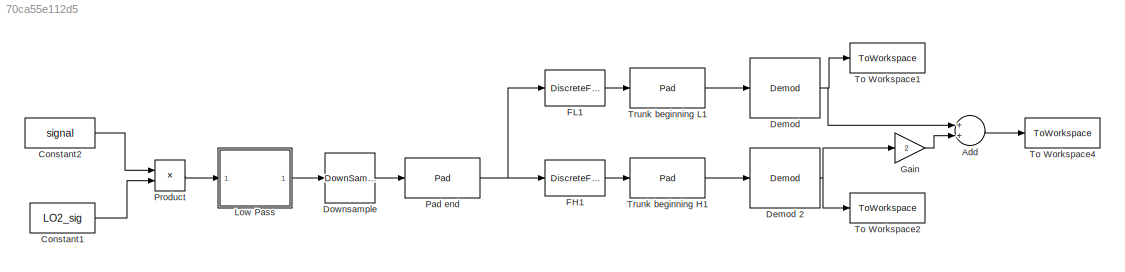
MODEL slx_70ca55e112d5
KIND model
CONFIG AbsTol = auto
CONFIG FixedStep = auto
CONFIG MaxStep = auto
CONFIG MinStep = auto
CONFIG RelTol = 1e-3
CONFIG SampleTimeConstraint = Unconstrained
CONFIG Solver = VariableStepAuto
CONFIG SolverMode = Auto
CONFIG SolverName = VariableStepAuto
CONFIG StartTime = 0.0
CONFIG StopTime = 809*1/66000
BLOCK [Sum] Add
  InputSameDT = off
  OutDataTypeStr = double
  Ports = [2, 1]
  SaturateOnIntegerOverflow = off
BLOCK [Constant] Constant1
  SampleTime = fs
  Value = LO2_sig
BLOCK [Constant] Constant2
  SampleTime = fs
  Value = signal
BLOCK [Reference] Demod   REF=lib1/Demod  (lib defined in slx_a02f9044f325)

  Ports = [1, 1]
  SourceBlock = lib1/Demod
  SourceType = SubSystem
BLOCK [Reference] Demod 2  REF=lib1/Demod  (lib defined in slx_a02f9044f325)

  Ports = [1, 1]
  SourceBlock = lib1/Demod
  SourceType = SubSystem
BLOCK [DownSample] Downsample
  N = 64
BLOCK [DiscreteFilter] FH1
  Denominator = bandpass_a_H
  InputPortMap = u0
  InputProcessing = Columns as channels (frame based)
  Numerator = bandpass_b_H
  Ports = [1, 1]
BLOCK [DiscreteFilter] FL1
  Denominator = bandpass_a_L
  InputPortMap = u0
  InputProcessing = Columns as channels (frame based)
  Numerator = bandpass_b_L
  Ports = [1, 1]
BLOCK [Gain] Gain
  Gain = 2
  OutDataTypeStr = Inherit: Inherit via internal rule
  ParamDataTypeStr = Inherit: Inherit via internal rule
  SaturateOnIntegerOverflow = off
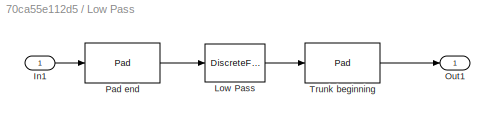
BLOCK [SubSystem] Low Pass
  Ports = [1, 1]
  RequestExecContextInheritance = off
  Variant = off
BLOCK [Inport] Low Pass/In1
  IconDisplay = Port number
BLOCK [DiscreteFir] Low Pass/Low Pass 
  Coefficients = b_low_pass
  InputPortMap = u0
  InputProcessing = Columns as channels (frame based)
  OutputPortMap = o0
  Ports = [1, 1]
BLOCK [Outport] Low Pass/Out1
  IconDisplay = Port number
BLOCK [Reference] Low Pass/Pad end  REF=dspsigops/Pad
  Ports = [1, 1]
  SourceBlock = dspsigops/Pad
  SourceType = Pad
BLOCK [Reference] Low Pass/Trunk beginning  REF=dspsigops/Pad
  Ports = [1, 1]
  SourceBlock = dspsigops/Pad
  SourceType = Pad
BLOCK [Reference] Pad end  REF=dspsigops/Pad
  Ports = [1, 1]
  SourceBlock = dspsigops/Pad
  SourceType = Pad
BLOCK [Product] Product
  InputSameDT = off
  OutDataTypeStr = Inherit: Inherit via internal rule
  Ports = [2, 1]
  RndMeth = Floor
  SaturateOnIntegerOverflow = off
BLOCK [ToWorkspace] To Workspace1
  Commented = on
  FixptAsFi = on
  MaxDataPoints = inf
  Ports = [1]
  SampleTime = -1
  Save2DSignal = 3-D array (concatenate along third dimension)
  SaveFormat = Timeseries
  VariableName = low
BLOCK [ToWorkspace] To Workspace2
  Commented = on
  FixptAsFi = on
  MaxDataPoints = inf
  Ports = [1]
  SampleTime = -1
  Save2DSignal = 3-D array (concatenate along third dimension)
  SaveFormat = Timeseries
  VariableName = high
BLOCK [ToWorkspace] To Workspace4
  FixptAsFi = on
  MaxDataPoints = inf
  Ports = [1]
  SampleTime = -1
  Save2DSignal = 3-D array (concatenate along third dimension)
  VariableName = received_data
BLOCK [Reference] Trunk beginning H1  REF=dspsigops/Pad
  Ports = [1, 1]
  SourceBlock = dspsigops/Pad
  SourceType = Pad
BLOCK [Reference] Trunk beginning L1  REF=dspsigops/Pad
  Ports = [1, 1]
  SourceBlock = dspsigops/Pad
  SourceType = Pad
LINE Add:1 -> To Workspace4:1
LINE Constant1:1 -> Product:2
LINE Constant2:1 -> Product:1
NET Demod 2:1 -> Gain:1, To Workspace2:1
NET Demod :1 -> Add:1, To Workspace1:1
LINE Downsample:1 -> Pad end:1
LINE FH1:1 -> Trunk beginning H1:1
LINE FL1:1 -> Trunk beginning L1:1
LINE Gain:1 -> Add:2
LINE Low Pass/In1:1 -> Low Pass/Pad end:1
LINE Low Pass/Low Pass :1 -> Low Pass/Trunk beginning:1
LINE Low Pass/Pad end:1 -> Low Pass/Low Pass :1
LINE Low Pass/Trunk beginning:1 -> Low Pass/Out1:1
LINE Low Pass:1 -> Downsample:1
NET Pad end:1 -> FH1:1, FL1:1
LINE Product:1 -> Low Pass:1
LINE Trunk beginning H1:1 -> Demod 2:1
LINE Trunk beginning L1:1 -> Demod :1
note: NET lines group one-source signal fan-out (src -> all destinations, sorted); 1:1 wires keep LINE
